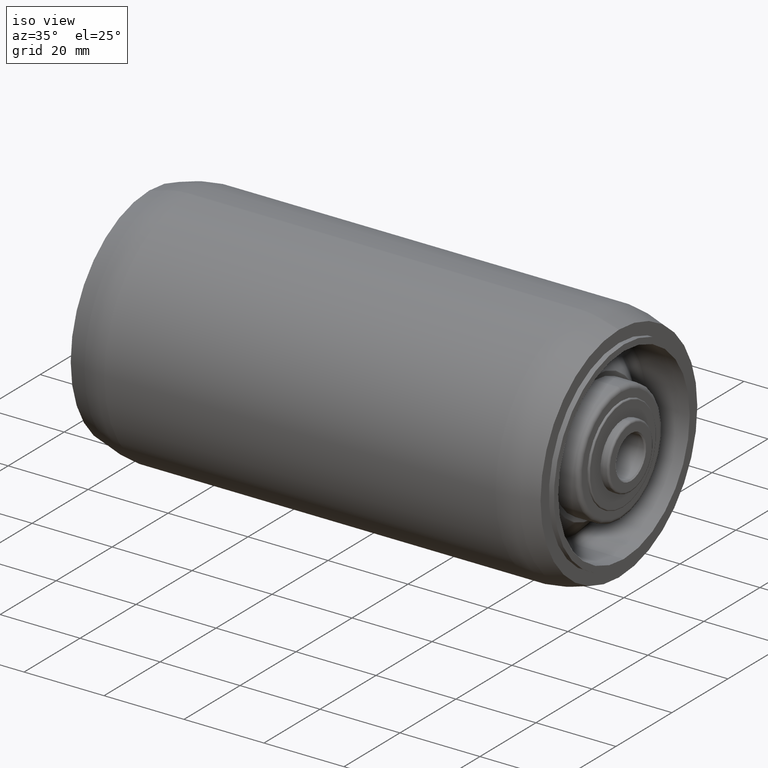
[diagram: clean part render]
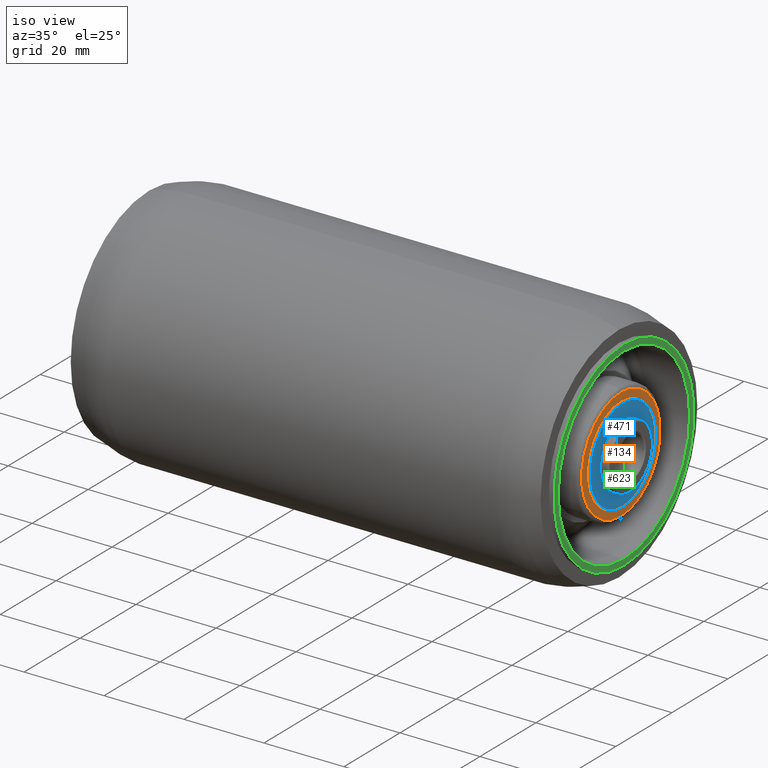
[diagram: same view with three faces highlighted in distinct colors, each labeled with its STEP entity id]
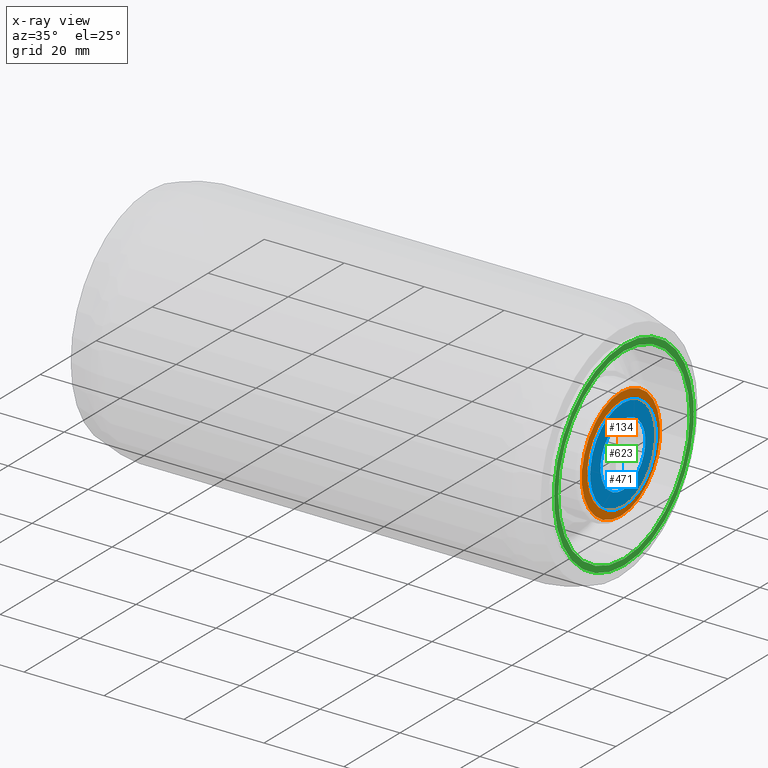
[diagram: x-ray of the same camera — body ghosted, the three highlighted faces saturated]
A machine part, iso view with three faces highlighted in distinct colors.
The next image is the same camera in x-ray (body ghosted, the three faces saturated) — at least one of them is partly hidden behind the body in this view.
Their STEP definitions:

[orange] entity #134 — the highlighted planar face has unit normal (-1, 0, -0).
#48 = DIRECTION ( 'NONE',  ( 0.0000000000000000000, 0.0000000000000000000, 1.000000000000000000 ) ) ;
#97 = VERTEX_POINT ( 'NONE', #630 ) ;
#118 = DIRECTION ( 'NONE',  ( -1.000000000000000000, 0.0000000000000000000, -0.0000000000000000000 ) ) ;
#134 = ADVANCED_FACE ( 'NONE', ( #1620, #899 ), #869, .F. ) ;
#136 = VERTEX_POINT ( 'NONE', #268 ) ;
#192 = EDGE_CURVE ( 'NONE', #136, #915, #1266, .T. ) ;
#268 = CARTESIAN_POINT ( 'NONE',  ( 59.25000000000000000, 0.0000000000000000000, 13.99999999999999822 ) ) ;
#348 = CARTESIAN_POINT ( 'NONE',  ( 59.25000000000000000, 0.0000000000000000000, 0.0000000000000000000 ) ) ;
#401 = DIRECTION ( 'NONE',  ( -0.0000000000000000000, 0.0000000000000000000, 1.000000000000000000 ) ) ;
#490 = ORIENTED_EDGE ( 'NONE', *, *, #1888, .T. ) ;
#630 = CARTESIAN_POINT ( 'NONE',  ( 59.25000000000000000, 1.469576158976823947E-15, -12.00000000000000000 ) ) ;
#670 = VERTEX_POINT ( 'NONE', #1163 ) ;
#768 = AXIS2_PLACEMENT_3D ( 'NONE', #1159, #118, #401 ) ;
#834 = DIRECTION ( 'NONE',  ( -1.000000000000000000, -0.0000000000000000000, -0.0000000000000000000 ) ) ;
#869 = PLANE ( 'NONE',  #768 ) ;
#897 = AXIS2_PLACEMENT_3D ( 'NONE', #1932, #1050, #1771 ) ;
#899 = FACE_BOUND ( 'NONE', #1744, .T. ) ;
#915 = VERTEX_POINT ( 'NONE', #924 ) ;
#924 = CARTESIAN_POINT ( 'NONE',  ( 59.25000000000000000, 1.775737858763662015E-15, -13.99999999999999822 ) ) ;
#987 = CIRCLE ( 'NONE', #1238, 12.00000000000000000 ) ;
#1050 = DIRECTION ( 'NONE',  ( 1.000000000000000000, 0.0000000000000000000, 0.0000000000000000000 ) ) ;
#1159 = CARTESIAN_POINT ( 'NONE',  ( 59.25000000000000000, 15.00000000000000000, 0.0000000000000000000 ) ) ;
#1163 = CARTESIAN_POINT ( 'NONE',  ( 59.25000000000000000, 0.0000000000000000000, 12.00000000000000000 ) ) ;
#1238 = AXIS2_PLACEMENT_3D ( 'NONE', #1705, #1575, #1567 ) ;
#1266 = CIRCLE ( 'NONE', #897, 13.99999999999999822 ) ;
#1276 = AXIS2_PLACEMENT_3D ( 'NONE', #1726, #834, #1880 ) ;
#1278 = CIRCLE ( 'NONE', #1276, 12.00000000000000000 ) ;
#1413 = DIRECTION ( 'NONE',  ( 1.000000000000000000, 0.0000000000000000000, 0.0000000000000000000 ) ) ;
#1483 = ORIENTED_EDGE ( 'NONE', *, *, #1748, .T. ) ;
#1487 = ORIENTED_EDGE ( 'NONE', *, *, #192, .T. ) ;
#1567 = DIRECTION ( 'NONE',  ( 0.0000000000000000000, 0.0000000000000000000, 1.000000000000000000 ) ) ;
#1575 = DIRECTION ( 'NONE',  ( -1.000000000000000000, -0.0000000000000000000, -0.0000000000000000000 ) ) ;
#1588 = CIRCLE ( 'NONE', #1903, 13.99999999999999822 ) ;
#1620 = FACE_OUTER_BOUND ( 'NONE', #1745, .T. ) ;
#1705 = CARTESIAN_POINT ( 'NONE',  ( 59.25000000000000000, 0.0000000000000000000, 0.0000000000000000000 ) ) ;
#1723 = EDGE_CURVE ( 'NONE', #670, #97, #987, .T. ) ;
#1726 = CARTESIAN_POINT ( 'NONE',  ( 59.25000000000000000, 0.0000000000000000000, 0.0000000000000000000 ) ) ;
#1744 = EDGE_LOOP ( 'NONE', ( #1811, #490 ) ) ;
#1745 = EDGE_LOOP ( 'NONE', ( #1487, #1483 ) ) ;
#1748 = EDGE_CURVE ( 'NONE', #915, #136, #1588, .T. ) ;
#1771 = DIRECTION ( 'NONE',  ( 0.0000000000000000000, 0.0000000000000000000, 1.000000000000000000 ) ) ;
#1811 = ORIENTED_EDGE ( 'NONE', *, *, #1723, .T. ) ;
#1880 = DIRECTION ( 'NONE',  ( 0.0000000000000000000, 0.0000000000000000000, 1.000000000000000000 ) ) ;
#1888 = EDGE_CURVE ( 'NONE', #97, #670, #1278, .T. ) ;
#1903 = AXIS2_PLACEMENT_3D ( 'NONE', #348, #1413, #48 ) ;
#1932 = CARTESIAN_POINT ( 'NONE',  ( 59.25000000000000000, 0.0000000000000000000, 0.0000000000000000000 ) ) ;

[blue] entity #471 — the highlighted planar face has unit normal (-1, 0, -0).
#45 = DIRECTION ( 'NONE',  ( -1.000000000000000000, 0.0000000000000000000, -0.0000000000000000000 ) ) ;
#79 = AXIS2_PLACEMENT_3D ( 'NONE', #1847, #45, #1092 ) ;
#109 = EDGE_CURVE ( 'NONE', #668, #316, #1803, .T. ) ;
#237 = DIRECTION ( 'NONE',  ( 0.0000000000000000000, 0.0000000000000000000, 1.000000000000000000 ) ) ;
#316 = VERTEX_POINT ( 'NONE', #1547 ) ;
#364 = FACE_BOUND ( 'NONE', #1595, .T. ) ;
#428 = CARTESIAN_POINT ( 'NONE',  ( 59.75000000000000000, 1.451206456989613517E-15, -11.70000000000000107 ) ) ;
#471 = ADVANCED_FACE ( 'NONE', ( #807, #364 ), #651, .F. ) ;
#515 = EDGE_LOOP ( 'NONE', ( #1885, #1516 ) ) ;
#556 = ORIENTED_EDGE ( 'NONE', *, *, #570, .T. ) ;
#570 = EDGE_CURVE ( 'NONE', #1703, #638, #1476, .T. ) ;
#592 = AXIS2_PLACEMENT_3D ( 'NONE', #999, #1883, #1731 ) ;
#638 = VERTEX_POINT ( 'NONE', #1459 ) ;
#640 = DIRECTION ( 'NONE',  ( -1.000000000000000000, -0.0000000000000000000, -0.0000000000000000000 ) ) ;
#651 = PLANE ( 'NONE',  #79 ) ;
#655 = CIRCLE ( 'NONE', #1176, 8.000000000000000000 ) ;
#668 = VERTEX_POINT ( 'NONE', #428 ) ;
#807 = FACE_OUTER_BOUND ( 'NONE', #515, .T. ) ;
#871 = CIRCLE ( 'NONE', #592, 11.70000000000000107 ) ;
#972 = CARTESIAN_POINT ( 'NONE',  ( 59.75000000000000000, 0.0000000000000000000, 0.0000000000000000000 ) ) ;
#999 = CARTESIAN_POINT ( 'NONE',  ( 59.75000000000000000, 0.0000000000000000000, 0.0000000000000000000 ) ) ;
#1033 = DIRECTION ( 'NONE',  ( 0.0000000000000000000, 0.0000000000000000000, 1.000000000000000000 ) ) ;
#1092 = DIRECTION ( 'NONE',  ( -0.0000000000000000000, 0.0000000000000000000, 1.000000000000000000 ) ) ;
#1148 = ORIENTED_EDGE ( 'NONE', *, *, #1776, .T. ) ;
#1176 = AXIS2_PLACEMENT_3D ( 'NONE', #1398, #640, #1710 ) ;
#1308 = DIRECTION ( 'NONE',  ( -1.000000000000000000, -0.0000000000000000000, -0.0000000000000000000 ) ) ;
#1398 = CARTESIAN_POINT ( 'NONE',  ( 59.75000000000000000, 0.0000000000000000000, 0.0000000000000000000 ) ) ;
#1422 = AXIS2_PLACEMENT_3D ( 'NONE', #1492, #1638, #1033 ) ;
#1459 = CARTESIAN_POINT ( 'NONE',  ( 59.75000000000000000, 0.0000000000000000000, 8.000000000000000000 ) ) ;
#1476 = CIRCLE ( 'NONE', #1649, 8.000000000000000000 ) ;
#1492 = CARTESIAN_POINT ( 'NONE',  ( 59.75000000000000000, 0.0000000000000000000, 0.0000000000000000000 ) ) ;
#1516 = ORIENTED_EDGE ( 'NONE', *, *, #109, .T. ) ;
#1547 = CARTESIAN_POINT ( 'NONE',  ( 59.75000000000000000, 0.0000000000000000000, 11.70000000000000107 ) ) ;
#1549 = CARTESIAN_POINT ( 'NONE',  ( 59.75000000000000000, 9.797174393178825657E-16, -8.000000000000000000 ) ) ;
#1595 = EDGE_LOOP ( 'NONE', ( #1148, #556 ) ) ;
#1611 = EDGE_CURVE ( 'NONE', #316, #668, #871, .T. ) ;
#1638 = DIRECTION ( 'NONE',  ( 1.000000000000000000, 0.0000000000000000000, 0.0000000000000000000 ) ) ;
#1649 = AXIS2_PLACEMENT_3D ( 'NONE', #972, #1308, #237 ) ;
#1703 = VERTEX_POINT ( 'NONE', #1549 ) ;
#1710 = DIRECTION ( 'NONE',  ( 0.0000000000000000000, 0.0000000000000000000, 1.000000000000000000 ) ) ;
#1731 = DIRECTION ( 'NONE',  ( 0.0000000000000000000, 0.0000000000000000000, 1.000000000000000000 ) ) ;
#1776 = EDGE_CURVE ( 'NONE', #638, #1703, #655, .T. ) ;
#1803 = CIRCLE ( 'NONE', #1422, 11.70000000000000107 ) ;
#1847 = CARTESIAN_POINT ( 'NONE',  ( 59.75000000000000000, 12.00000000000000000, 0.0000000000000000000 ) ) ;
#1883 = DIRECTION ( 'NONE',  ( 1.000000000000000000, 0.0000000000000000000, 0.0000000000000000000 ) ) ;
#1885 = ORIENTED_EDGE ( 'NONE', *, *, #1611, .T. ) ;

[green] entity #623 — the highlighted planar face has unit normal (-1, 0, -0).
#13 = CARTESIAN_POINT ( 'NONE',  ( 60.00000000000000000, 0.0000000000000000000, 0.0000000000000000000 ) ) ;
#51 = CARTESIAN_POINT ( 'NONE',  ( 60.00000000000000000, 0.0000000000000000000, 23.50000000000000000 ) ) ;
#71 = VERTEX_POINT ( 'NONE', #775 ) ;
#163 = ORIENTED_EDGE ( 'NONE', *, *, #1182, .T. ) ;
#169 = CIRCLE ( 'NONE', #979, 23.50000000000000000 ) ;
#270 = CARTESIAN_POINT ( 'NONE',  ( 60.00000000000000000, 25.00000000000000000, 0.0000000000000000000 ) ) ;
#397 = DIRECTION ( 'NONE',  ( -1.000000000000000000, -0.0000000000000000000, -0.0000000000000000000 ) ) ;
#413 = FACE_BOUND ( 'NONE', #822, .T. ) ;
#453 = CARTESIAN_POINT ( 'NONE',  ( 60.00000000000000000, 2.877919977996280320E-15, -23.50000000000000000 ) ) ;
#549 = DIRECTION ( 'NONE',  ( -1.000000000000000000, 0.0000000000000000000, -0.0000000000000000000 ) ) ;
#623 = ADVANCED_FACE ( 'NONE', ( #1169, #413 ), #1612, .F. ) ;
#666 = EDGE_CURVE ( 'NONE', #844, #1310, #169, .T. ) ;
#685 = CARTESIAN_POINT ( 'NONE',  ( 60.00000000000000000, 0.0000000000000000000, 0.0000000000000000000 ) ) ;
#727 = AXIS2_PLACEMENT_3D ( 'NONE', #1263, #956, #1090 ) ;
#775 = CARTESIAN_POINT ( 'NONE',  ( 60.00000000000000000, 3.061616997868383043E-15, -25.00000000000000000 ) ) ;
#822 = EDGE_LOOP ( 'NONE', ( #163, #1009 ) ) ;
#844 = VERTEX_POINT ( 'NONE', #453 ) ;
#852 = CIRCLE ( 'NONE', #1634, 23.50000000000000000 ) ;
#860 = CARTESIAN_POINT ( 'NONE',  ( 60.00000000000000000, 0.0000000000000000000, 0.0000000000000000000 ) ) ;
#948 = CARTESIAN_POINT ( 'NONE',  ( 60.00000000000000000, 0.0000000000000000000, 25.00000000000000000 ) ) ;
#956 = DIRECTION ( 'NONE',  ( -1.000000000000000000, -0.0000000000000000000, -0.0000000000000000000 ) ) ;
#979 = AXIS2_PLACEMENT_3D ( 'NONE', #860, #1907, #1012 ) ;
#984 = ORIENTED_EDGE ( 'NONE', *, *, #1262, .F. ) ;
#1009 = ORIENTED_EDGE ( 'NONE', *, *, #666, .T. ) ;
#1012 = DIRECTION ( 'NONE',  ( 0.0000000000000000000, 0.0000000000000000000, 1.000000000000000000 ) ) ;
#1026 = AXIS2_PLACEMENT_3D ( 'NONE', #685, #397, #1746 ) ;
#1071 = DIRECTION ( 'NONE',  ( 0.0000000000000000000, 0.0000000000000000000, 1.000000000000000000 ) ) ;
#1090 = DIRECTION ( 'NONE',  ( 0.0000000000000000000, 0.0000000000000000000, 1.000000000000000000 ) ) ;
#1134 = EDGE_LOOP ( 'NONE', ( #1796, #984 ) ) ;
#1169 = FACE_OUTER_BOUND ( 'NONE', #1134, .T. ) ;
#1182 = EDGE_CURVE ( 'NONE', #1310, #844, #852, .T. ) ;
#1218 = DIRECTION ( 'NONE',  ( -1.000000000000000000, -0.0000000000000000000, -0.0000000000000000000 ) ) ;
#1262 = EDGE_CURVE ( 'NONE', #71, #1372, #1542, .T. ) ;
#1263 = CARTESIAN_POINT ( 'NONE',  ( 60.00000000000000000, 0.0000000000000000000, 0.0000000000000000000 ) ) ;
#1310 = VERTEX_POINT ( 'NONE', #51 ) ;
#1372 = VERTEX_POINT ( 'NONE', #948 ) ;
#1541 = CIRCLE ( 'NONE', #1026, 25.00000000000000000 ) ;
#1542 = CIRCLE ( 'NONE', #727, 25.00000000000000000 ) ;
#1599 = EDGE_CURVE ( 'NONE', #1372, #71, #1541, .T. ) ;
#1612 = PLANE ( 'NONE',  #1879 ) ;
#1634 = AXIS2_PLACEMENT_3D ( 'NONE', #13, #1218, #1071 ) ;
#1746 = DIRECTION ( 'NONE',  ( 0.0000000000000000000, 0.0000000000000000000, 1.000000000000000000 ) ) ;
#1796 = ORIENTED_EDGE ( 'NONE', *, *, #1599, .F. ) ;
#1879 = AXIS2_PLACEMENT_3D ( 'NONE', #270, #549, #1901 ) ;
#1901 = DIRECTION ( 'NONE',  ( -0.0000000000000000000, 0.0000000000000000000, 1.000000000000000000 ) ) ;
#1907 = DIRECTION ( 'NONE',  ( -1.000000000000000000, -0.0000000000000000000, -0.0000000000000000000 ) ) ;